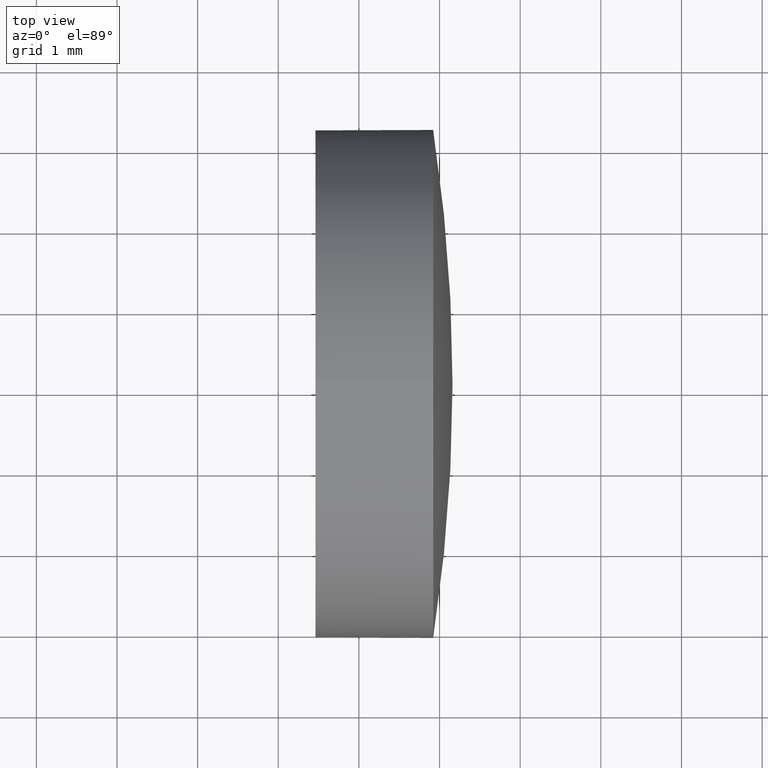
[diagram: clean part render]
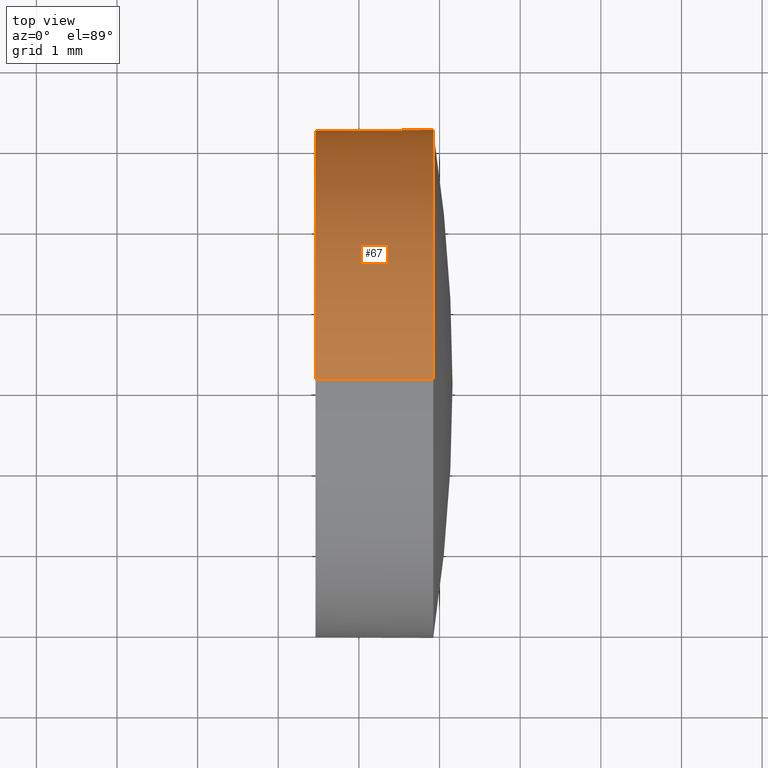
[diagram: same view with one face highlighted and labeled with its STEP entity id]
A machine part, top view. The second image highlights one B-rep face of the part: STEP entity #67.
In plain terms, the highlighted cylindrical surface (partial cylindrical patch) has radius 3.15 mm, axis along (-1, -0, -0).
Its self-contained STEP definition (entity closure, byte-faithful):
#4 = DIRECTION ( 'NONE',  ( 0.0000000000000000000, 0.0000000000000000000, 1.000000000000000000 ) ) ;
#7 = ORIENTED_EDGE ( 'NONE', *, *, #140, .T. ) ;
#8 = CARTESIAN_POINT ( 'NONE',  ( 439.9211293306011600, 24.08364198256748500, 0.0000000000000000000 ) ) ;
#13 = AXIS2_PLACEMENT_3D ( 'NONE', #8, #49, #176 ) ;
#18 = VERTEX_POINT ( 'NONE', #60 ) ;
#19 = FACE_OUTER_BOUND ( 'NONE', #89, .T. ) ;
#27 = CARTESIAN_POINT ( 'NONE',  ( 437.6554189180591800, 24.08364198256748500, 3.149999999999999900 ) ) ;
#29 = ORIENTED_EDGE ( 'NONE', *, *, #82, .F. ) ;
#36 = CARTESIAN_POINT ( 'NONE',  ( 439.9211293306011600, 24.08364198256748500, 3.149999999999999900 ) ) ;
#44 = EDGE_CURVE ( 'NONE', #132, #155, #122, .T. ) ;
#46 = DIRECTION ( 'NONE',  ( 0.0000000000000000000, 0.0000000000000000000, 1.000000000000000000 ) ) ;
#49 = DIRECTION ( 'NONE',  ( -1.000000000000000000, -0.0000000000000000000, -0.0000000000000000000 ) ) ;
#52 = DIRECTION ( 'NONE',  ( -1.000000000000000000, -0.0000000000000000000, -0.0000000000000000000 ) ) ;
#54 = ORIENTED_EDGE ( 'NONE', *, *, #108, .T. ) ;
#57 = VECTOR ( 'NONE', #180, 1000.000000000000000 ) ;
#58 = CARTESIAN_POINT ( 'NONE',  ( 437.6554189180591800, 24.08364198256748500, 0.0000000000000000000 ) ) ;
#60 = CARTESIAN_POINT ( 'NONE',  ( 438.4611293306011200, 24.08364198256748500, -3.149999999999999900 ) ) ;
#62 = CARTESIAN_POINT ( 'NONE',  ( 437.6554189180591800, 24.08364198256748500, -3.149999999999999900 ) ) ;
#63 = CARTESIAN_POINT ( 'NONE',  ( 438.4611293306011200, 24.08364198256748500, 0.0000000000000000000 ) ) ;
#67 = ADVANCED_FACE ( 'NONE', ( #19 ), #86, .T. ) ;
#71 = CIRCLE ( 'NONE', #13, 3.149999999999999900 ) ;
#73 = VERTEX_POINT ( 'NONE', #103 ) ;
#82 = EDGE_CURVE ( 'NONE', #173, #18, #133, .T. ) ;
#85 = DIRECTION ( 'NONE',  ( -1.000000000000000000, -0.0000000000000000000, -0.0000000000000000000 ) ) ;
#86 = CYLINDRICAL_SURFACE ( 'NONE', #138, 3.149999999999999900 ) ;
#89 = EDGE_LOOP ( 'NONE', ( #7, #54, #29, #162, #116 ) ) ;
#96 = LINE ( 'NONE', #62, #57 ) ;
#99 = DIRECTION ( 'NONE',  ( -1.000000000000000000, -0.0000000000000000000, -0.0000000000000000000 ) ) ;
#103 = CARTESIAN_POINT ( 'NONE',  ( 439.9211293306011600, 24.08364198256748500, -3.149999999999999900 ) ) ;
#108 = EDGE_CURVE ( 'NONE', #73, #18, #96, .T. ) ;
#116 = ORIENTED_EDGE ( 'NONE', *, *, #44, .T. ) ;
#122 = CIRCLE ( 'NONE', #184, 3.149999999999999900 ) ;
#132 = VERTEX_POINT ( 'NONE', #36 ) ;
#133 = CIRCLE ( 'NONE', #175, 3.149999999999999900 ) ;
#136 = CARTESIAN_POINT ( 'NONE',  ( 439.9211293306011600, 27.23364198256747300, 0.0000000000000000000 ) ) ;
#138 = AXIS2_PLACEMENT_3D ( 'NONE', #58, #161, #4 ) ;
#140 = EDGE_CURVE ( 'NONE', #155, #73, #71, .T. ) ;
#144 = VECTOR ( 'NONE', #85, 1000.000000000000000 ) ;
#150 = LINE ( 'NONE', #27, #144 ) ;
#154 = DIRECTION ( 'NONE',  ( 0.0000000000000000000, 0.0000000000000000000, 1.000000000000000000 ) ) ;
#155 = VERTEX_POINT ( 'NONE', #136 ) ;
#156 = CARTESIAN_POINT ( 'NONE',  ( 438.4611293306011200, 24.08364198256748500, 3.149999999999999900 ) ) ;
#160 = CARTESIAN_POINT ( 'NONE',  ( 439.9211293306011600, 24.08364198256748500, 0.0000000000000000000 ) ) ;
#161 = DIRECTION ( 'NONE',  ( -1.000000000000000000, -0.0000000000000000000, -0.0000000000000000000 ) ) ;
#162 = ORIENTED_EDGE ( 'NONE', *, *, #172, .F. ) ;
#172 = EDGE_CURVE ( 'NONE', #132, #173, #150, .T. ) ;
#173 = VERTEX_POINT ( 'NONE', #156 ) ;
#175 = AXIS2_PLACEMENT_3D ( 'NONE', #63, #52, #154 ) ;
#176 = DIRECTION ( 'NONE',  ( 0.0000000000000000000, 0.0000000000000000000, 1.000000000000000000 ) ) ;
#180 = DIRECTION ( 'NONE',  ( -1.000000000000000000, -0.0000000000000000000, -0.0000000000000000000 ) ) ;
#184 = AXIS2_PLACEMENT_3D ( 'NONE', #160, #99, #46 ) ;